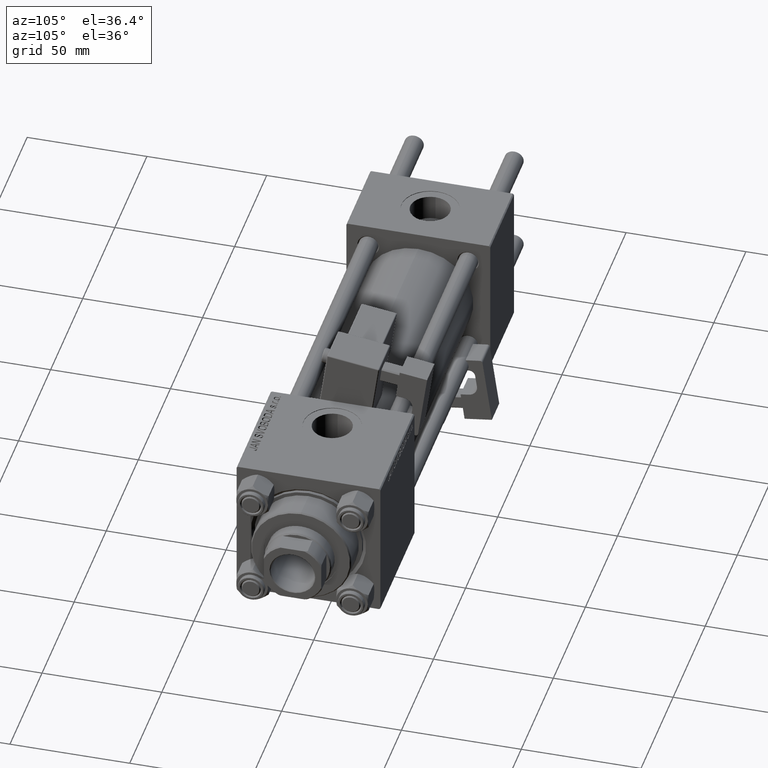
[diagram: clean part render]
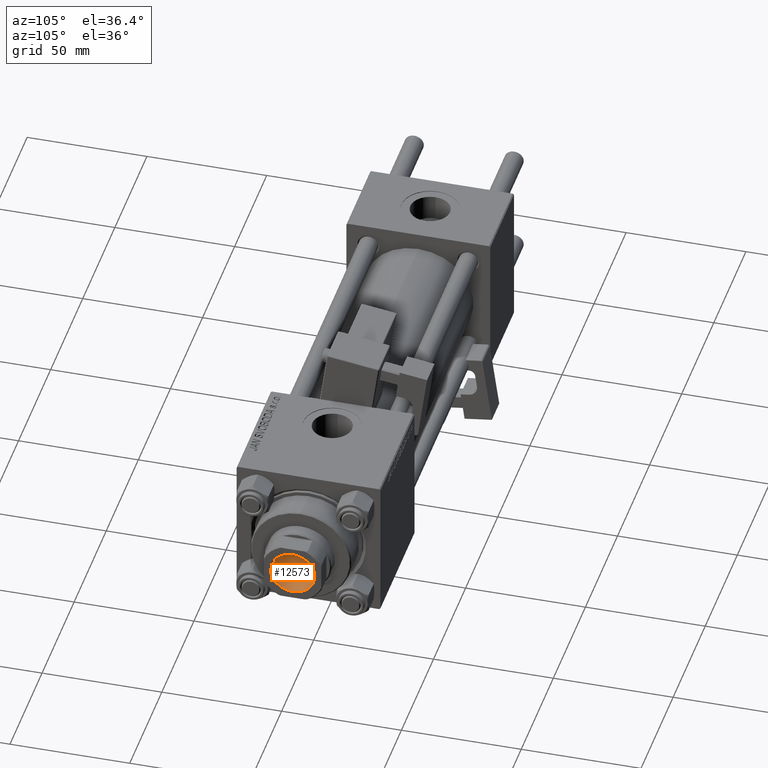
[diagram: same view with one face highlighted and labeled with its STEP entity id]
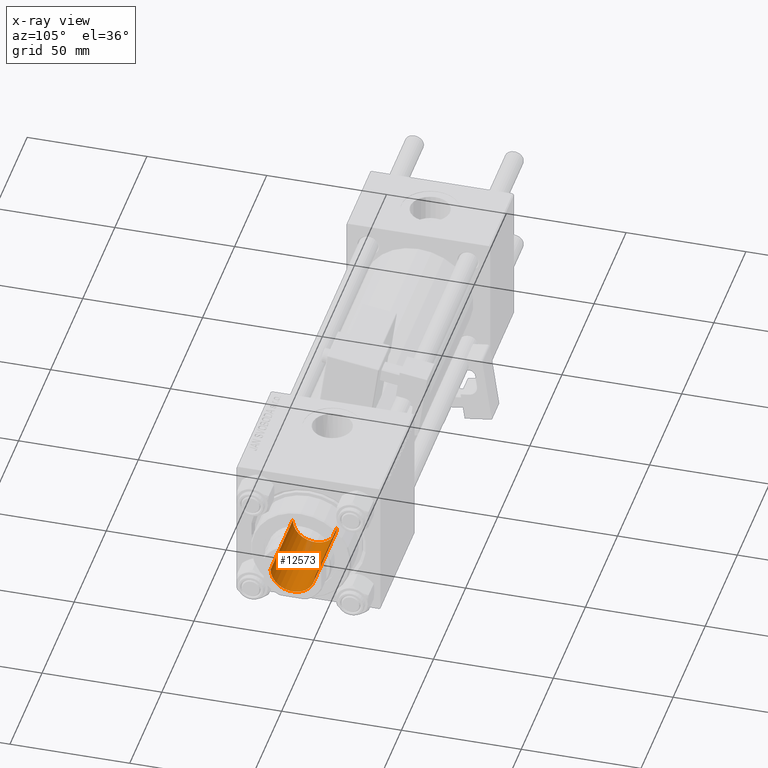
[diagram: x-ray of the same camera — body ghosted, the highlighted face saturated]
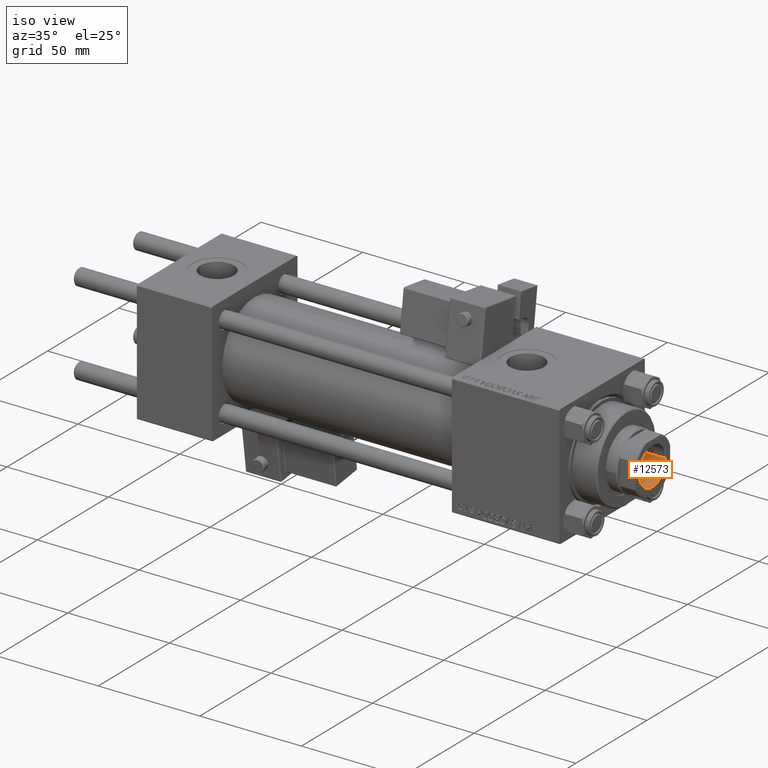
[diagram: same view with one face highlighted and labeled with its STEP entity id]
A machine part, auxiliary view. The second image highlights one B-rep face of the part: STEP entity #12573.
The next image is the same camera in x-ray: the body ghosted, the highlighted face saturated — about 3% of this face is hidden behind the body in this view.
A second angle (iso view) of the same face is appended — the face is thin or edge-on in the first view.
In plain terms, the highlighted cylindrical surface (edge-blend (fillet) strip) has radius 9.25 mm, axis along (1, 0, -0).
Its self-contained STEP definition (entity closure, byte-faithful):
#1363 = VERTEX_POINT ( 'NONE', #23910 ) ;
#1484 = DIRECTION ( 'NONE',  ( -0.000000000000000000, -0.000000000000000000, 1.000000000000000000 ) ) ;
#1495 = CARTESIAN_POINT ( 'NONE',  ( -9.249999999999992895, 1.132798289211300712E-15, 161.0000000000000000 ) ) ;
#1861 = AXIS2_PLACEMENT_3D ( 'NONE', #8344, #11527, #19189 ) ;
#2126 = CARTESIAN_POINT ( 'NONE',  ( 0.000000000000000000, 0.000000000000000000, 161.0000000000000000 ) ) ;
#2304 = DIRECTION ( 'NONE',  ( -0.000000000000000000, -0.000000000000000000, 1.000000000000000000 ) ) ;
#2607 = VERTEX_POINT ( 'NONE', #7423 ) ;
#5444 = LINE ( 'NONE', #21534, #36036 ) ;
#7046 = FACE_OUTER_BOUND ( 'NONE', #40029, .T. ) ;
#7423 = CARTESIAN_POINT ( 'NONE',  ( 9.249999999999994671, 0.000000000000000000, 195.7000000000000171 ) ) ;
#8344 = CARTESIAN_POINT ( 'NONE',  ( 0.000000000000000000, 0.000000000000000000, 195.7000000000000171 ) ) ;
#11016 = DIRECTION ( 'NONE',  ( 1.000000000000000000, 0.000000000000000000, 0.000000000000000000 ) ) ;
#11527 = DIRECTION ( 'NONE',  ( 0.000000000000000000, 0.000000000000000000, 1.000000000000000000 ) ) ;
#12386 = EDGE_CURVE ( 'NONE', #20895, #15337, #21505, .T. ) ;
#12573 = ADVANCED_FACE ( 'NONE', ( #7046 ), #23127, .F. ) ;
#13210 = VECTOR ( 'NONE', #31134, 1000.000000000000000 ) ;
#13375 = ORIENTED_EDGE ( 'NONE', *, *, #50561, .T. ) ;
#15309 = DIRECTION ( 'NONE',  ( 1.000000000000000000, 0.000000000000000000, 0.000000000000000000 ) ) ;
#15337 = VERTEX_POINT ( 'NONE', #1495 ) ;
#16163 = ORIENTED_EDGE ( 'NONE', *, *, #34199, .T. ) ;
#18049 = ORIENTED_EDGE ( 'NONE', *, *, #12386, .F. ) ;
#19189 = DIRECTION ( 'NONE',  ( 1.000000000000000000, 0.000000000000000000, 0.000000000000000000 ) ) ;
#20895 = VERTEX_POINT ( 'NONE', #30353 ) ;
#21505 = CIRCLE ( 'NONE', #50919, 9.249999999999992895 ) ;
#21534 = CARTESIAN_POINT ( 'NONE',  ( -9.249999999999994671, 1.132798289211300909E-15, 196.0000000000000000 ) ) ;
#22410 = AXIS2_PLACEMENT_3D ( 'NONE', #51277, #2304, #11016 ) ;
#22759 = LINE ( 'NONE', #38790, #13210 ) ;
#23127 = CYLINDRICAL_SURFACE ( 'NONE', #22410, 9.249999999999994671 ) ;
#23910 = CARTESIAN_POINT ( 'NONE',  ( -9.249999999999994671, 1.132798289211300909E-15, 195.7000000000000171 ) ) ;
#30353 = CARTESIAN_POINT ( 'NONE',  ( 9.249999999999992895, 0.000000000000000000, 161.0000000000000000 ) ) ;
#31134 = DIRECTION ( 'NONE',  ( -0.000000000000000000, -0.000000000000000000, 1.000000000000000000 ) ) ;
#34199 = EDGE_CURVE ( 'NONE', #20895, #2607, #22759, .T. ) ;
#34653 = CIRCLE ( 'NONE', #1861, 9.249999999999994671 ) ;
#34772 = DIRECTION ( 'NONE',  ( -0.000000000000000000, -0.000000000000000000, 1.000000000000000000 ) ) ;
#36036 = VECTOR ( 'NONE', #1484, 1000.000000000000000 ) ;
#37990 = EDGE_CURVE ( 'NONE', #15337, #1363, #5444, .T. ) ;
#38790 = CARTESIAN_POINT ( 'NONE',  ( 9.249999999999994671, 0.000000000000000000, 196.0000000000000000 ) ) ;
#40029 = EDGE_LOOP ( 'NONE', ( #44923, #18049, #16163, #13375 ) ) ;
#44923 = ORIENTED_EDGE ( 'NONE', *, *, #37990, .F. ) ;
#50561 = EDGE_CURVE ( 'NONE', #2607, #1363, #34653, .T. ) ;
#50919 = AXIS2_PLACEMENT_3D ( 'NONE', #2126, #34772, #15309 ) ;
#51277 = CARTESIAN_POINT ( 'NONE',  ( 0.000000000000000000, 0.000000000000000000, 196.0000000000000000 ) ) ;